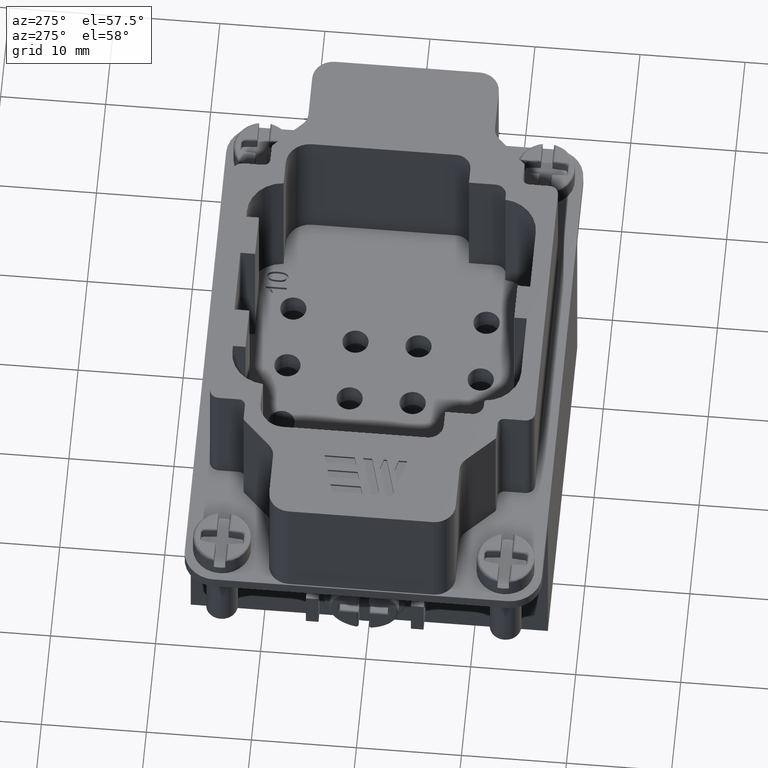
[diagram: clean part render]
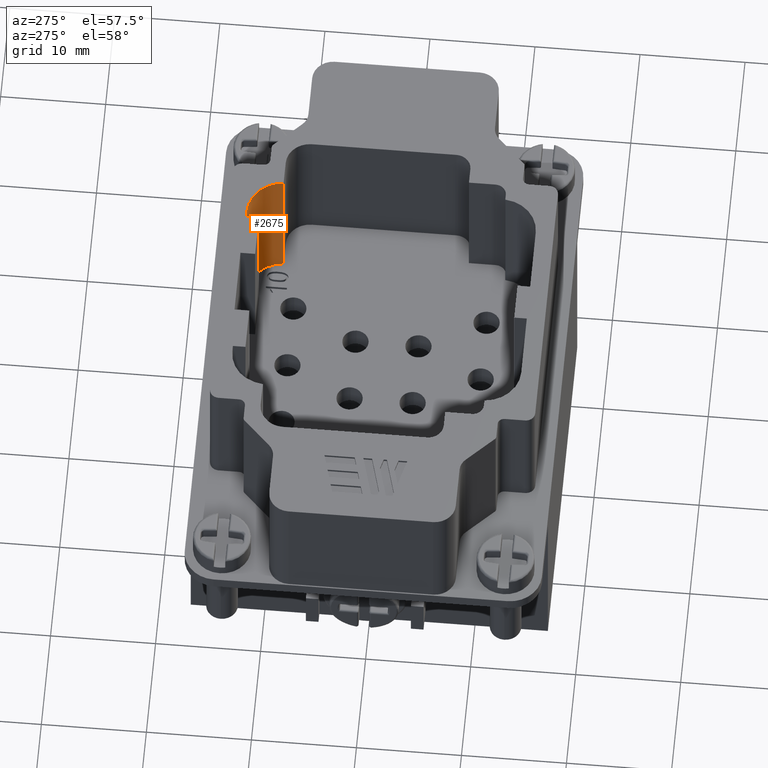
[diagram: same view with one face highlighted and labeled with its STEP entity id]
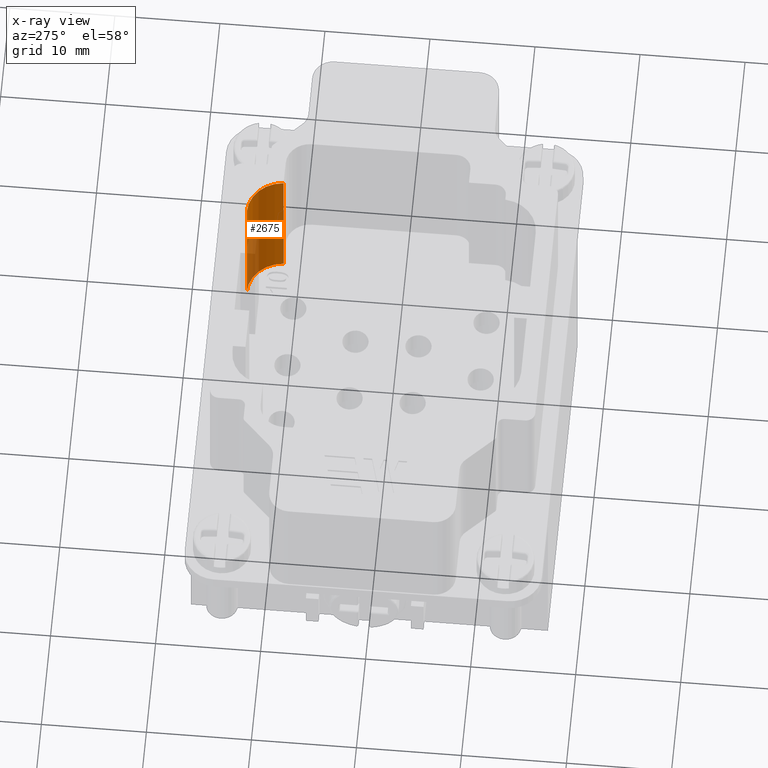
[diagram: x-ray of the same camera — body ghosted, the highlighted face saturated]
A machine part, auxiliary view. The second image highlights one B-rep face of the part: STEP entity #2675.
The next image is the same camera in x-ray: the body ghosted, the highlighted face saturated — about 17% of this face is hidden behind the body in this view.
In plain terms, the highlighted cylindrical surface (edge-blend (fillet) strip) has radius 3.4534 mm, axis along (0, 0, 1).
Its self-contained STEP definition (entity closure, byte-faithful):
#162 = CIRCLE ( 'NONE', #11829, 0.1359598821038626171 ) ;
#422 = CARTESIAN_POINT ( 'NONE',  ( 0.4466170449908521412, 0.4154874413342048434, -9.883074782879046536E-12 ) ) ;
#1149 = DIRECTION ( 'NONE',  ( -0.000000000000000000, -0.000000000000000000, -1.000000000000000000 ) ) ;
#1821 = DIRECTION ( 'NONE',  ( 1.000000000000000000, 0.000000000000000000, 0.000000000000000000 ) ) ;
#1998 = VERTEX_POINT ( 'NONE', #11522 ) ;
#2473 = CIRCLE ( 'NONE', #13821, 0.1359598821038626171 ) ;
#2504 = VERTEX_POINT ( 'NONE', #12954 ) ;
#2573 = DIRECTION ( 'NONE',  ( 0.000000000000000000, 0.000000000000000000, 1.000000000000000000 ) ) ;
#2675 = ADVANCED_FACE ( 'NONE', ( #17198 ), #16773, .F. ) ;
#3840 = CARTESIAN_POINT ( 'NONE',  ( 0.3110236220489606129, 0.5414716933027051704, -0.5590551181102441092 ) ) ;
#3864 = ORIENTED_EDGE ( 'NONE', *, *, #9372, .F. ) ;
#3937 = DIRECTION ( 'NONE',  ( 0.000000000000000000, 0.000000000000000000, 1.000000000000000000 ) ) ;
#6058 = ORIENTED_EDGE ( 'NONE', *, *, #7848, .F. ) ;
#6270 = EDGE_LOOP ( 'NONE', ( #3864, #8323, #6058, #17352 ) ) ;
#7813 = VECTOR ( 'NONE', #3937, 39.37007874015748143 ) ;
#7826 = CARTESIAN_POINT ( 'NONE',  ( 0.3110236220489606129, 0.4055118111988426088, -0.5590551181102441092 ) ) ;
#7848 = EDGE_CURVE ( 'NONE', #13676, #2504, #16558, .T. ) ;
#8323 = ORIENTED_EDGE ( 'NONE', *, *, #13225, .F. ) ;
#9372 = EDGE_CURVE ( 'NONE', #1998, #12691, #11983, .T. ) ;
#9838 = EDGE_CURVE ( 'NONE', #12691, #13676, #2473, .T. ) ;
#11522 = CARTESIAN_POINT ( 'NONE',  ( 0.3110236220489606129, 0.5414716933027049484, -0.5590551181102441092 ) ) ;
#11829 = AXIS2_PLACEMENT_3D ( 'NONE', #7826, #15645, #1821 ) ;
#11983 = LINE ( 'NONE', #3840, #7813 ) ;
#12228 = CARTESIAN_POINT ( 'NONE',  ( 0.3110236220489606129, 0.5414716933027049484, -9.883074782879046536E-12 ) ) ;
#12691 = VERTEX_POINT ( 'NONE', #12228 ) ;
#12954 = CARTESIAN_POINT ( 'NONE',  ( 0.4466170449908523077, 0.4154874413342028450, -0.5590551181102441092 ) ) ;
#13225 = EDGE_CURVE ( 'NONE', #2504, #1998, #162, .T. ) ;
#13676 = VERTEX_POINT ( 'NONE', #422 ) ;
#13821 = AXIS2_PLACEMENT_3D ( 'NONE', #18796, #1149, #18591 ) ;
#14786 = DIRECTION ( 'NONE',  ( -0.000000000000000000, -0.000000000000000000, -1.000000000000000000 ) ) ;
#15310 = DIRECTION ( 'NONE',  ( 1.000000000000000000, 0.000000000000000000, 0.000000000000000000 ) ) ;
#15645 = DIRECTION ( 'NONE',  ( 0.000000000000000000, 0.000000000000000000, 1.000000000000000000 ) ) ;
#16350 = CARTESIAN_POINT ( 'NONE',  ( 0.4466170449908521412, 0.4154874413342048989, -0.5590551181102441092 ) ) ;
#16367 = AXIS2_PLACEMENT_3D ( 'NONE', #20317, #2573, #15310 ) ;
#16558 = LINE ( 'NONE', #16350, #17775 ) ;
#16773 = CYLINDRICAL_SURFACE ( 'NONE', #16367, 0.1359598821038626171 ) ;
#17198 = FACE_OUTER_BOUND ( 'NONE', #6270, .T. ) ;
#17352 = ORIENTED_EDGE ( 'NONE', *, *, #9838, .F. ) ;
#17775 = VECTOR ( 'NONE', #14786, 39.37007874015748143 ) ;
#18591 = DIRECTION ( 'NONE',  ( 1.000000000000000000, 0.000000000000000000, 0.000000000000000000 ) ) ;
#18796 = CARTESIAN_POINT ( 'NONE',  ( 0.3110236220489606129, 0.4055118111988426088, -9.883074782879046536E-12 ) ) ;
#20317 = CARTESIAN_POINT ( 'NONE',  ( 0.3110236220489606129, 0.4055118111988426088, -0.5590551181102441092 ) ) ;